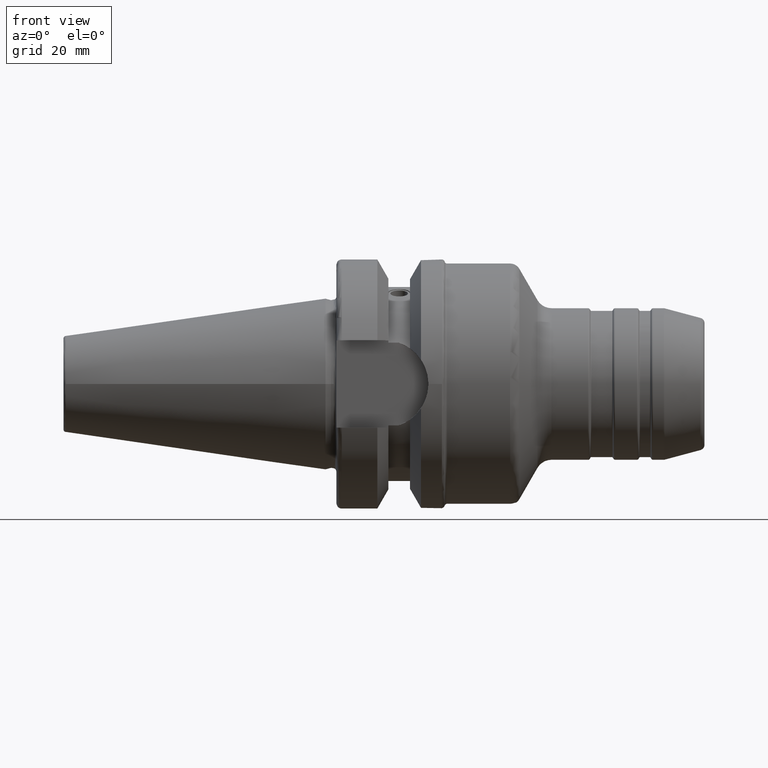
[diagram: clean part render]
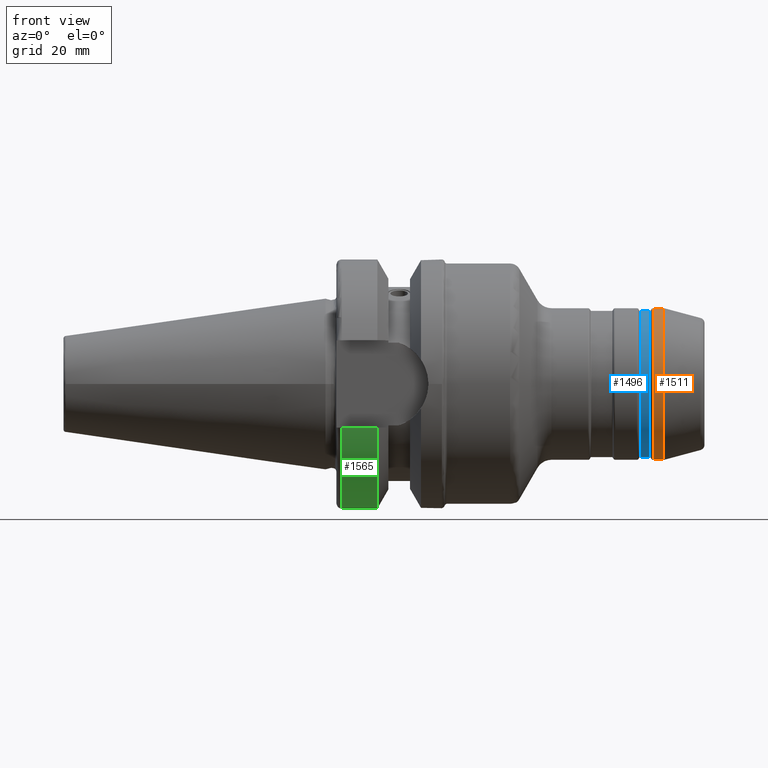
[diagram: same view with three faces highlighted in distinct colors, each labeled with its STEP entity id]
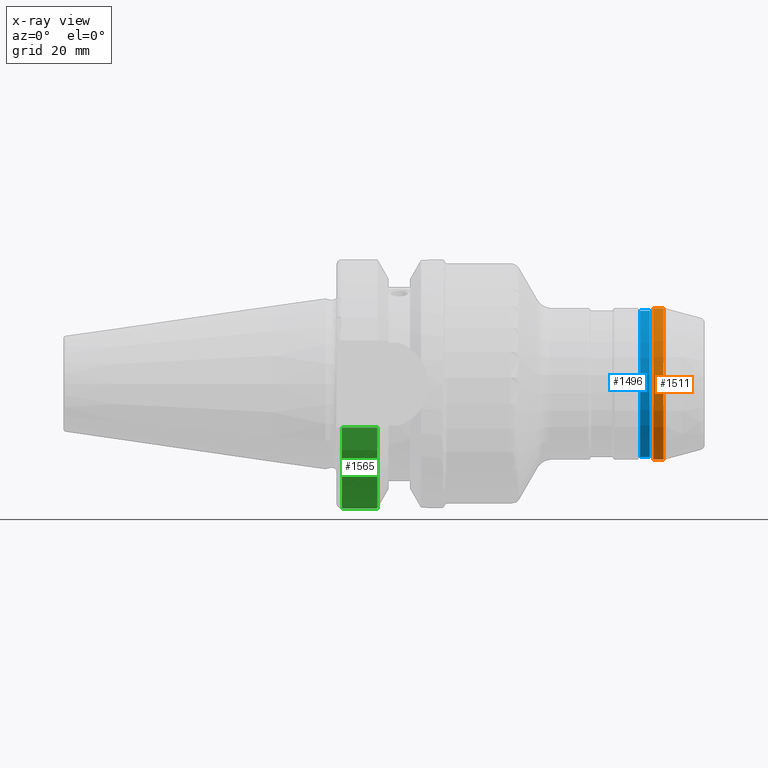
[diagram: x-ray of the same camera — body ghosted, the three highlighted faces saturated]
A machine part, front view with three faces highlighted in distinct colors.
The next image is the same camera in x-ray (body ghosted, the three faces saturated) — at least one of them is partly hidden behind the body in this view.
Their STEP definitions:

[orange] entity #1511 — the highlighted cylindrical surface (bore or boss wall) has radius 14 mm, axis along (1, 0, 0).
#126=LINE('',#2429,#201);
#201=VECTOR('',#1932,14.);
#272=CYLINDRICAL_SURFACE('',#1654,14.);
#323=FACE_OUTER_BOUND('',#418,.T.);
#418=EDGE_LOOP('',(#1064,#1065,#1066,#1067));
#531=CIRCLE('',#1652,14.);
#533=CIRCLE('',#1655,14.);
#632=VERTEX_POINT('',#2423);
#633=VERTEX_POINT('',#2427);
#793=EDGE_CURVE('',#632,#632,#531,.T.);
#795=EDGE_CURVE('',#633,#633,#533,.T.);
#796=EDGE_CURVE('',#633,#632,#126,.T.);
#1064=ORIENTED_EDGE('',*,*,#795,.F.);
#1065=ORIENTED_EDGE('',*,*,#796,.T.);
#1066=ORIENTED_EDGE('',*,*,#793,.F.);
#1067=ORIENTED_EDGE('',*,*,#796,.F.);
#1511=ADVANCED_FACE('',(#323),#272,.T.);
#1652=AXIS2_PLACEMENT_3D('',#2424,#1924,#1925);
#1654=AXIS2_PLACEMENT_3D('',#2426,#1928,#1929);
#1655=AXIS2_PLACEMENT_3D('',#2428,#1930,#1931);
#1924=DIRECTION('center_axis',(-1.,0.,0.));
#1925=DIRECTION('ref_axis',(0.,1.22464679914735E-16,1.));
#1928=DIRECTION('center_axis',(1.,0.,0.));
#1929=DIRECTION('ref_axis',(0.,0.,-1.));
#1930=DIRECTION('center_axis',(1.,0.,0.));
#1931=DIRECTION('ref_axis',(0.,1.22464679914735E-16,1.));
#1932=DIRECTION('',(-1.,0.,0.));
#2423=CARTESIAN_POINT('',(60.5196152422707,-1.71450551880629E-15,14.));
#2424=CARTESIAN_POINT('Origin',(60.5196152422707,0.,0.));
#2426=CARTESIAN_POINT('Origin',(61.4122867597285,0.,0.));
#2427=CARTESIAN_POINT('',(62.4042458872748,-1.71450551880629E-15,14.));
#2428=CARTESIAN_POINT('Origin',(62.4042458872748,0.,0.));
#2429=CARTESIAN_POINT('',(61.4122867597285,-1.71450551880629E-15,14.));

[blue] entity #1496 — the highlighted cylindrical surface (bore or boss wall) has radius 13.5 mm, axis along (1, 0, 0).
#118=LINE('',#2368,#193);
#193=VECTOR('',#1848,13.5);
#268=CYLINDRICAL_SURFACE('',#1617,13.5);
#308=FACE_OUTER_BOUND('',#403,.T.);
#403=EDGE_LOOP('',(#1004,#1005,#1006,#1007));
#508=CIRCLE('',#1614,13.5);
#511=CIRCLE('',#1618,13.5);
#616=VERTEX_POINT('',#2361);
#618=VERTEX_POINT('',#2367);
#762=EDGE_CURVE('',#616,#616,#508,.T.);
#765=EDGE_CURVE('',#616,#618,#118,.T.);
#766=EDGE_CURVE('',#618,#618,#511,.T.);
#1004=ORIENTED_EDGE('',*,*,#762,.F.);
#1005=ORIENTED_EDGE('',*,*,#765,.T.);
#1006=ORIENTED_EDGE('',*,*,#766,.F.);
#1007=ORIENTED_EDGE('',*,*,#765,.F.);
#1496=ADVANCED_FACE('',(#308),#268,.T.);
#1614=AXIS2_PLACEMENT_3D('',#2362,#1840,#1841);
#1617=AXIS2_PLACEMENT_3D('',#2366,#1846,#1847);
#1618=AXIS2_PLACEMENT_3D('',#2369,#1849,#1850);
#1840=DIRECTION('center_axis',(1.,0.,0.));
#1841=DIRECTION('ref_axis',(0.,1.22464679914735E-16,1.));
#1846=DIRECTION('center_axis',(1.,0.,0.));
#1847=DIRECTION('ref_axis',(0.,0.,-1.));
#1848=DIRECTION('',(-1.,0.,0.));
#1849=DIRECTION('center_axis',(-1.,0.,0.));
#1850=DIRECTION('ref_axis',(0.,1.22464679914735E-16,1.));
#2361=CARTESIAN_POINT('',(59.8845299461621,-1.65327317884893E-15,13.5));
#2362=CARTESIAN_POINT('Origin',(59.8845299461621,0.,0.));
#2366=CARTESIAN_POINT('Origin',(59.,0.,0.));
#2367=CARTESIAN_POINT('',(58.1154700538379,-1.65327317884893E-15,13.5));
#2368=CARTESIAN_POINT('',(59.,-1.65327317884893E-15,13.5));
#2369=CARTESIAN_POINT('Origin',(58.1154700538379,0.,0.));

[green] entity #1565 — the highlighted cylindrical surface (partial cylindrical patch) has radius 23 mm, axis along (1, 0, 0).
#171=LINE('',#2968,#246);
#178=LINE('',#3023,#253);
#246=VECTOR('',#2213,10.);
#253=VECTOR('',#2250,10.);
#299=CYLINDRICAL_SURFACE('',#1787,23.);
#377=FACE_OUTER_BOUND('',#481,.T.);
#481=EDGE_LOOP('',(#1351,#1352,#1353,#1354));
#591=CIRCLE('',#1786,23.);
#592=CIRCLE('',#1788,23.);
#730=VERTEX_POINT('',#2952);
#731=VERTEX_POINT('',#2957);
#739=VERTEX_POINT('',#3010);
#741=VERTEX_POINT('',#3021);
#939=EDGE_CURVE('',#730,#731,#171,.T.);
#954=EDGE_CURVE('',#730,#739,#591,.T.);
#957=EDGE_CURVE('',#731,#741,#592,.T.);
#958=EDGE_CURVE('',#741,#739,#178,.T.);
#1351=ORIENTED_EDGE('',*,*,#939,.T.);
#1352=ORIENTED_EDGE('',*,*,#957,.T.);
#1353=ORIENTED_EDGE('',*,*,#958,.T.);
#1354=ORIENTED_EDGE('',*,*,#954,.F.);
#1565=ADVANCED_FACE('',(#377),#299,.T.);
#1786=AXIS2_PLACEMENT_3D('',#3011,#2244,#2245);
#1787=AXIS2_PLACEMENT_3D('',#3020,#2246,#2247);
#1788=AXIS2_PLACEMENT_3D('',#3022,#2248,#2249);
#2213=DIRECTION('',(-1.,-1.62798202122572E-21,0.));
#2244=DIRECTION('center_axis',(1.,1.62798202122572E-21,0.));
#2245=DIRECTION('ref_axis',(0.,0.,-1.));
#2246=DIRECTION('center_axis',(1.,1.62798202122572E-21,0.));
#2247=DIRECTION('ref_axis',(0.,1.,0.));
#2248=DIRECTION('center_axis',(1.,1.62798202122572E-21,0.));
#2249=DIRECTION('ref_axis',(0.,0.,-1.));
#2250=DIRECTION('',(1.,1.62798202122572E-21,0.));
#2952=CARTESIAN_POINT('',(9.57005904049381,-21.5452430944744,-8.05));
#2957=CARTESIAN_POINT('',(2.99999999999999,-21.5452430944745,-8.05));
#2968=CARTESIAN_POINT('',(6.2850295202469,-21.5452430944745,-8.05));
#3010=CARTESIAN_POINT('',(9.57005904049381,21.5452430944744,-8.05));
#3011=CARTESIAN_POINT('Origin',(9.57005904049381,2.08175114951191E-15,0.));
#3020=CARTESIAN_POINT('Origin',(6.2850295202469,2.08174580154291E-15,0.));
#3021=CARTESIAN_POINT('',(2.99999999999999,21.5452430944745,-8.05));
#3022=CARTESIAN_POINT('Origin',(2.99999999999999,2.08174045357391E-15,0.));
#3023=CARTESIAN_POINT('',(6.2850295202469,21.5452430944745,-8.05));